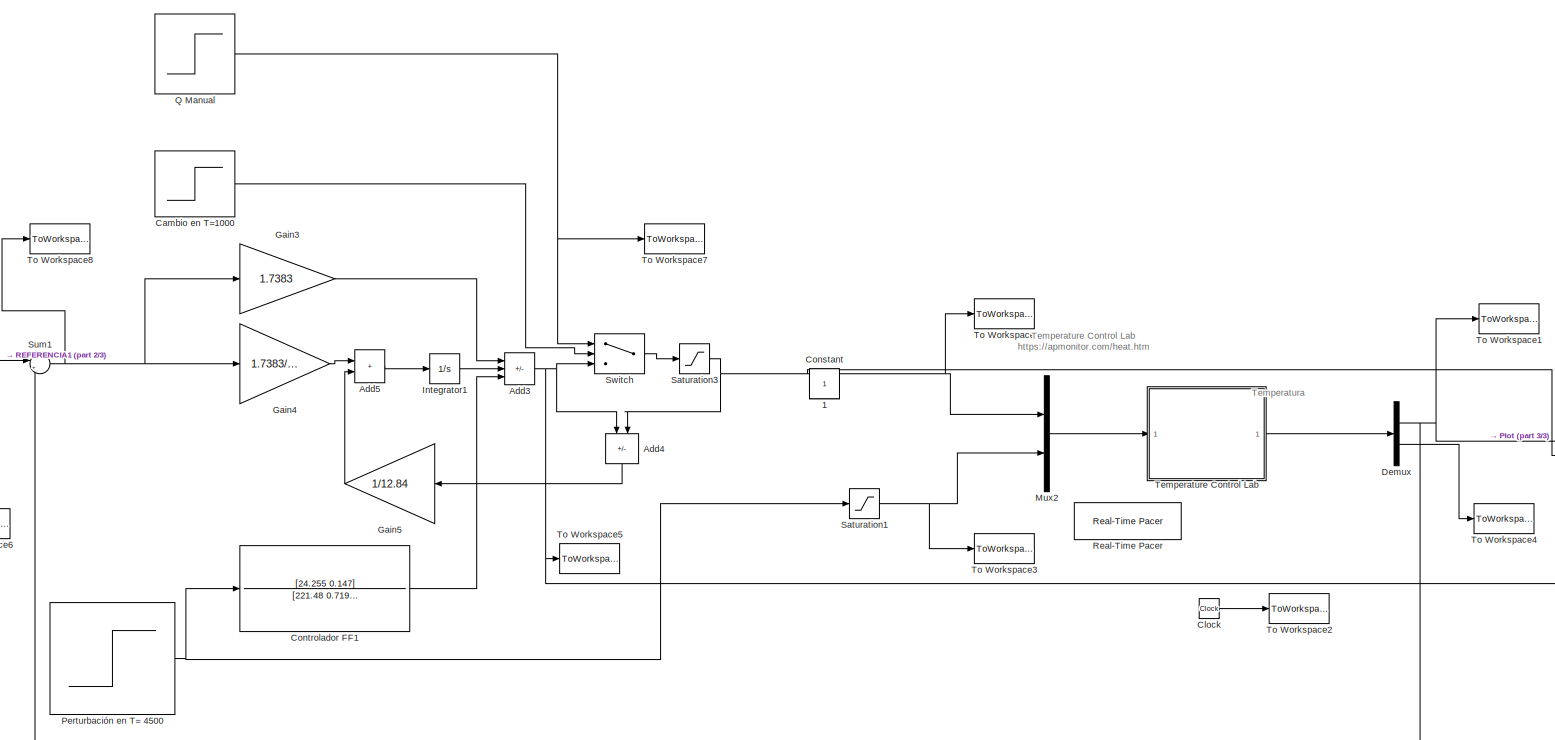
[diagram: root canvas - part 1/3, most of the canvas]
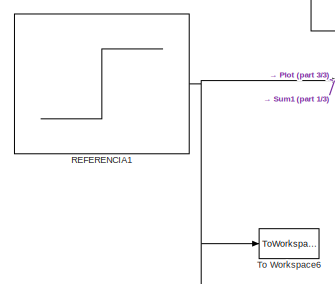
[diagram: root canvas - part 2/3, middle left region]
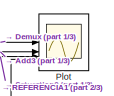
[diagram: root canvas - part 3/3, middle right region]
MODEL slx_91553c1ebb67
KIND model
CONFIG AbsTol = auto
CONFIG EnableMultiTasking = on
CONFIG FixedStep = auto
CONFIG MaxStep = auto
CONFIG MinStep = auto
CONFIG RelTol = 1e-3
CONFIG SampleTimeConstraint = Unconstrained
CONFIG SolverName = VariableStepAuto
CONFIG StartFcn = clear all
CONFIG StartTime = 0.0
CONFIG StopTime = 6250
BLOCK [Constant] 1
  IOType = siggen
BLOCK [Sum] Add3
  IconShape = rectangular
  Inputs = ++-
BLOCK [Sum] Add4
  IconShape = rectangular
  Inputs = -+
  NameLocation = left
BLOCK [Sum] Add5
  IconShape = rectangular
BLOCK [Step] Cambio en T=1000
  After = 0
  Before = 1
  SampleTime = 0
  Time = 1000
BLOCK [Clock] Clock
BLOCK [Constant] Constant
  IOType = siggen
BLOCK [TransferFcn] Controlador FF1
  Denominator = [221.48 0.7191]
  Numerator = [24.255 0.147]
BLOCK [Demux] Demux
  Outputs = 2
BLOCK [Gain] Gain3
  Gain = 1.7383
BLOCK [Gain] Gain4
  Gain = 1.7383/165
BLOCK [Gain] Gain5
  Gain = 1/12.84
  NameLocation = top
BLOCK [Integrator] Integrator1
  InitialCondition = 13
BLOCK [Mux] Mux2
  DisplayOption = bar
  Inputs = 2
BLOCK [Step] Perturbación en T= 4500
  After = 20
  SampleTime = 0
  Time = 4500
BLOCK [Scope] Plot
  Floating = off
  NumInputPorts = 4
  ScopeSpecificationString = Simulink.scopes.TimeScopeBlockCfg('CurrentConfiguration', extmgr.ConfigurationSet(extmgr.Configuration('Core','General UI',true),extmgr.Configuration('Core','Source UI',true),extmgr.Configuration('Sources','WiredSimulink',true,'DataLoggingSaveFormat','Array','DataLoggingDecimation','1','DataLoggingDecimateData',true),extmgr.Configuration('Visuals','Time Domain',true,'SerializedDisplays',{struct('M...<+2099ch>
BLOCK [Step] Q Manual
  After = 13
  SampleTime = 0
BLOCK [Step] REFERENCIA1
  After = 51.474
  Before = 36.474
  SampleTime = 0
  Time = 2000
BLOCK [Reference] Real-Time Pacer  REF=realtime_pacer_lib/Real-Time Pacer
  SourceBlock = realtime_pacer_lib/Real-Time Pacer
  SourceProductName = Real-Time Pacer
  SourceType = RealTime_Pacer
BLOCK [Saturate] Saturation1
  LowerLimit = 0
  UpperLimit = 100
BLOCK [Saturate] Saturation3
  LowerLimit = 0
  UpperLimit = 100
BLOCK [Sum] Sum1
  Inputs = |+-
BLOCK [Switch] Switch
  Criteria = u2 > Threshold
  InputSameDT = off
  SaturateOnIntegerOverflow = off
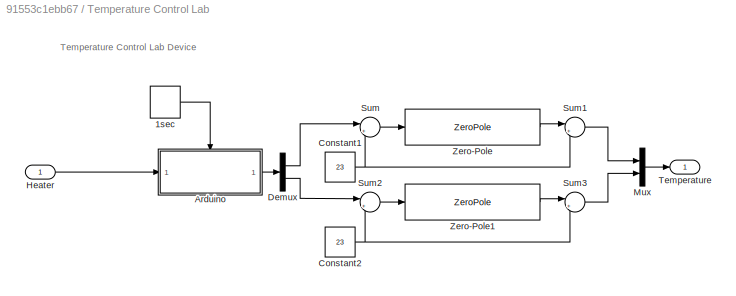
BLOCK [SubSystem] Temperature Control Lab
BLOCK [DiscretePulseGenerator] Temperature Control Lab/1sec
  Period = 1
  PulseType = Time based
  PulseWidth = 50
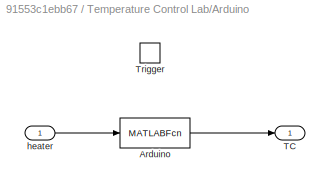
BLOCK [SubSystem] Temperature Control Lab/Arduino
  TreatAsAtomicUnit = on
BLOCK [MATLABFcn] Temperature Control Lab/Arduino/Arduino
  MATLABFcn = arduino_tclab
BLOCK [Outport] Temperature Control Lab/Arduino/TC
  InitialOutput = [23 23]
  VectorParamsAs1DForOutWhenUnconnected = off
BLOCK [TriggerPort] Temperature Control Lab/Arduino/Trigger
  StatesWhenEnabling = held
  VariantControl = Variant
BLOCK [Inport] Temperature Control Lab/Arduino/heater
  LatchByDelayingOutsideSignal = on
BLOCK [Constant] Temperature Control Lab/Constant1
  Value = 23
BLOCK [Constant] Temperature Control Lab/Constant2
  Value = 23
BLOCK [Demux] Temperature Control Lab/Demux
  Outputs = 2
BLOCK [Inport] Temperature Control Lab/Heater
BLOCK [Mux] Temperature Control Lab/Mux
  DisplayOption = bar
  Inputs = 2
BLOCK [Sum] Temperature Control Lab/Sum
  Inputs = |+-
BLOCK [Sum] Temperature Control Lab/Sum1
  Inputs = |++
BLOCK [Sum] Temperature Control Lab/Sum2
  Inputs = |+-
BLOCK [Sum] Temperature Control Lab/Sum3
  Inputs = |++
BLOCK [Outport] Temperature Control Lab/Temperature
  VectorParamsAs1DForOutWhenUnconnected = off
BLOCK [ZeroPole] Temperature Control Lab/Zero-Pole
  Gain = [0.01]
  Poles = [-0.1 -0.1]
  Zeros = []
BLOCK [ZeroPole] Temperature Control Lab/Zero-Pole1
  Gain = [0.01]
  Poles = [-0.1 -0.1]
  Zeros = []
BLOCK [ToWorkspace] To Workspace
  FixptAsFi = on
  MaxDataPoints = inf
  SampleTime = 0.5
  Save2DSignal = 2-D array (concatenate along first dimension)
  VariableName = Q1_Entrada
BLOCK [ToWorkspace] To Workspace1
  FixptAsFi = on
  MaxDataPoints = inf
  SampleTime = 0.5
  Save2DSignal = 2-D array (concatenate along first dimension)
  VariableName = T1_Control
BLOCK [ToWorkspace] To Workspace2
  FixptAsFi = on
  MaxDataPoints = inf
  SampleTime = 0.5
  Save2DSignal = 2-D array (concatenate along first dimension)
  VariableName = Tiempo
BLOCK [ToWorkspace] To Workspace3
  FixptAsFi = on
  MaxDataPoints = inf
  SampleTime = 0.5
  Save2DSignal = 2-D array (concatenate along first dimension)
  VariableName = Q2_Entrada
BLOCK [ToWorkspace] To Workspace4
  FixptAsFi = on
  MaxDataPoints = inf
  SampleTime = 0.5
  Save2DSignal = 2-D array (concatenate along first dimension)
  VariableName = T2_Control
BLOCK [ToWorkspace] To Workspace5
  FixptAsFi = on
  MaxDataPoints = inf
  SampleTime = 0.5
  Save2DSignal = 2-D array (concatenate along first dimension)
  VariableName = PI_Salida
BLOCK [ToWorkspace] To Workspace6
  FixptAsFi = on
  MaxDataPoints = inf
  SampleTime = 0.5
  Save2DSignal = 2-D array (concatenate along first dimension)
  VariableName = REF_PI
BLOCK [ToWorkspace] To Workspace7
  FixptAsFi = on
  MaxDataPoints = inf
  SampleTime = 0.5
  Save2DSignal = 2-D array (concatenate along first dimension)
  VariableName = Q1_Manual
BLOCK [ToWorkspace] To Workspace8
  FixptAsFi = on
  MaxDataPoints = inf
  SampleTime = 0.5
  Save2DSignal = 2-D array (concatenate along first dimension)
  VariableName = Error_PI
ANNOTATION (root): Temperatura
ANNOTATION (root): Temperature Control Lab https://apmonitor.com/heat.htm
ANNOTATION Temperature Control Lab: Temperature Control Lab Device
NET Add3:1 -> Add4:1, Plot:2, Switch:3, To Workspace5:1
LINE Add4:1 -> Gain5:1
LINE Add5:1 -> Integrator1:1
LINE Cambio en T=1000:1 -> Switch:2
LINE Clock:1 -> To Workspace2:1
LINE Controlador FF1:1 -> Add3:3
NET Demux:1 -> Plot:1, Sum1:2, To Workspace1:1
LINE Demux:2 -> To Workspace4:1
LINE Gain3:1 -> Add3:1
LINE Gain4:1 -> Add5:1
LINE Gain5:1 -> Add5:2
LINE Integrator1:1 -> Add3:2
LINE Mux2:1 -> Temperature Control Lab:1
NET Perturbación en T= 4500:1 -> Controlador FF1:1, Saturation1:1
NET Q Manual:1 -> Switch:1, To Workspace7:1
NET REFERENCIA1:1 -> Plot:4, Sum1:1, To Workspace6:1
NET Saturation1:1 -> Mux2:2, To Workspace3:1
NET Saturation3:1 -> Add4:2, Mux2:1, Plot:3, To Workspace:1
NET Sum1:1 -> Gain3:1, Gain4:1, To Workspace8:1
LINE Switch:1 -> Saturation3:1
LINE Temperature Control Lab/1sec:1 -> Temperature Control Lab/Arduino:trigger
LINE Temperature Control Lab/Arduino/Arduino:1 -> Temperature Control Lab/Arduino/TC:1
LINE Temperature Control Lab/Arduino/heater:1 -> Temperature Control Lab/Arduino/Arduino:1
LINE Temperature Control Lab/Arduino:1 -> Temperature Control Lab/Demux:1
NET Temperature Control Lab/Constant1:1 -> Temperature Control Lab/Sum1:2, Temperature Control Lab/Sum:2
NET Temperature Control Lab/Constant2:1 -> Temperature Control Lab/Sum2:2, Temperature Control Lab/Sum3:2
LINE Temperature Control Lab/Demux:1 -> Temperature Control Lab/Sum:1
LINE Temperature Control Lab/Demux:2 -> Temperature Control Lab/Sum2:1
LINE Temperature Control Lab/Heater:1 -> Temperature Control Lab/Arduino:1
LINE Temperature Control Lab/Mux:1 -> Temperature Control Lab/Temperature:1
LINE Temperature Control Lab/Sum1:1 -> Temperature Control Lab/Mux:1
LINE Temperature Control Lab/Sum2:1 -> Temperature Control Lab/Zero-Pole1:1
LINE Temperature Control Lab/Sum3:1 -> Temperature Control Lab/Mux:2
LINE Temperature Control Lab/Sum:1 -> Temperature Control Lab/Zero-Pole:1
LINE Temperature Control Lab/Zero-Pole1:1 -> Temperature Control Lab/Sum3:1
LINE Temperature Control Lab/Zero-Pole:1 -> Temperature Control Lab/Sum1:1
LINE Temperature Control Lab:1 -> Demux:1
note: NET lines group one-source signal fan-out (src -> all destinations, sorted); 1:1 wires keep LINE
